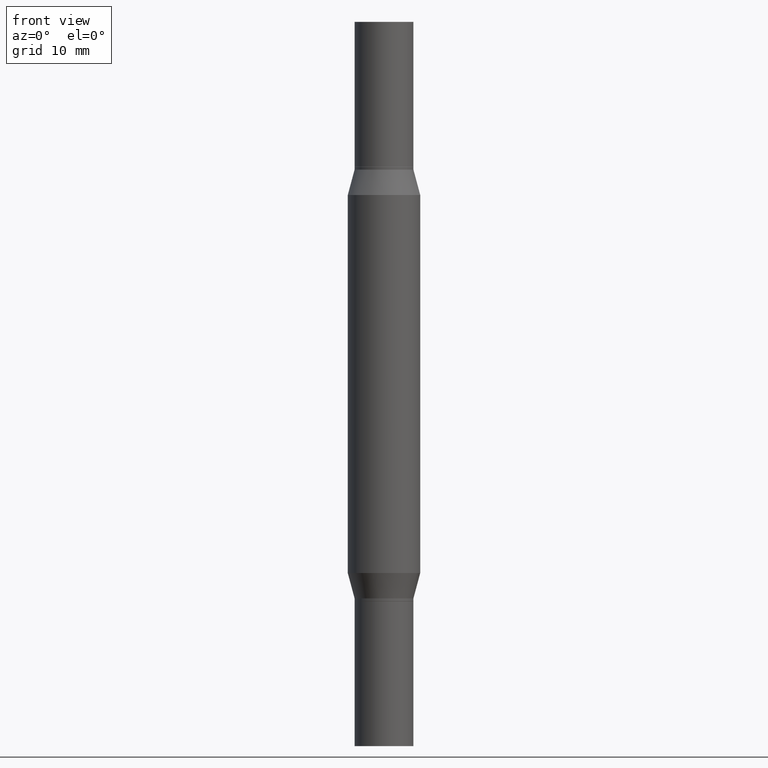
[diagram: clean part render]
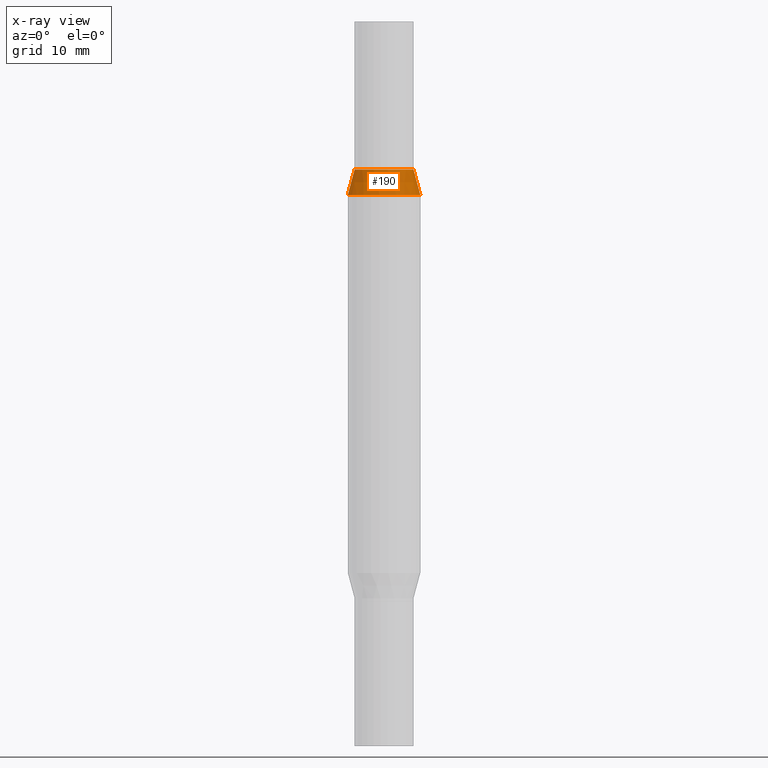
[diagram: x-ray — body ghosted, one internal face saturated and labeled with its STEP entity id]
A machine part, front view, then the same camera in x-ray: the body is ghosted and one INTERNAL B-rep face — a face not visible from any outside direction — is saturated and labeled: STEP entity #190.
In plain terms, the highlighted conical surface has half-angle 15 deg.
Its self-contained STEP definition (entity closure, byte-faithful):
#4 = CARTESIAN_POINT ( 'NONE',  ( -0.1015499999999997377, -1.067146257407934882E-15, -0.5099999999999994538 ) ) ;
#16 = CARTESIAN_POINT ( 'NONE',  ( 0.1250000000000000000, -2.958877117868543782E-15, -0.5975165914374901410 ) ) ;
#41 = AXIS2_PLACEMENT_3D ( 'NONE', #556, #442, #136 ) ;
#47 = DIRECTION ( 'NONE',  ( 1.000000000000000000, -6.982962677686266711E-15, 0.000000000000000000 ) ) ;
#48 = ORIENTED_EDGE ( 'NONE', *, *, #231, .T. ) ;
#92 = DIRECTION ( 'NONE',  ( 0.2588190451025219607, -5.180148453816008779E-15, -0.9659258262890678681 ) ) ;
#93 = ORIENTED_EDGE ( 'NONE', *, *, #787, .F. ) ;
#136 = DIRECTION ( 'NONE',  ( 1.000000000000000000, -6.982962677686268288E-15, 0.000000000000000000 ) ) ;
#150 = ORIENTED_EDGE ( 'NONE', *, *, #707, .T. ) ;
#159 = CARTESIAN_POINT ( 'NONE',  ( 0.1015499999999997377, -2.489535763201737721E-15, -0.5099999999999994538 ) ) ;
#173 = ORIENTED_EDGE ( 'NONE', *, *, #524, .F. ) ;
#181 = CIRCLE ( 'NONE', #839, 0.1250000000000000000 ) ;
#190 = ADVANCED_FACE ( 'NONE', ( #573 ), #456, .T. ) ;
#192 = VERTEX_POINT ( 'NONE', #578 ) ;
#211 = DIRECTION ( 'NONE',  ( 1.000000000000000000, -6.982962677686268288E-15, 0.000000000000000000 ) ) ;
#212 = AXIS2_PLACEMENT_3D ( 'NONE', #438, #653, #211 ) ;
#231 = EDGE_CURVE ( 'NONE', #472, #533, #367, .T. ) ;
#367 = LINE ( 'NONE', #895, #794 ) ;
#372 = EDGE_LOOP ( 'NONE', ( #93, #48, #150, #173 ) ) ;
#407 = DIRECTION ( 'NONE',  ( 2.445468806185136597E-29, 3.491805094961124077E-15, 1.000000000000000000 ) ) ;
#417 = CARTESIAN_POINT ( 'NONE',  ( 4.652463829924389037E-29, -2.086006783157758077E-15, -0.5975165914374901410 ) ) ;
#438 = CARTESIAN_POINT ( 'NONE',  ( 4.866482924308422209E-29, -1.780415903282698911E-15, -0.5099999999999994538 ) ) ;
#442 = DIRECTION ( 'NONE',  ( -2.445468806185136597E-29, -3.491805094961124077E-15, -1.000000000000000000 ) ) ;
#456 = CONICAL_SURFACE ( 'NONE', #41, 0.1015499999999997377, 0.2617993877991507401 ) ;
#472 = VERTEX_POINT ( 'NONE', #4 ) ;
#524 = EDGE_CURVE ( 'NONE', #192, #539, #910, .T. ) ;
#533 = VERTEX_POINT ( 'NONE', #547 ) ;
#539 = VERTEX_POINT ( 'NONE', #16 ) ;
#547 = CARTESIAN_POINT ( 'NONE',  ( -0.1250000000000000000, -1.228444533436318603E-15, -0.5975165914374901410 ) ) ;
#556 = CARTESIAN_POINT ( 'NONE',  ( 4.866482924308422209E-29, -1.780415903282698911E-15, -0.5099999999999994538 ) ) ;
#573 = FACE_OUTER_BOUND ( 'NONE', #372, .T. ) ;
#578 = CARTESIAN_POINT ( 'NONE',  ( 0.1015499999999997377, -2.489535763201737721E-15, -0.5099999999999994538 ) ) ;
#653 = DIRECTION ( 'NONE',  ( 2.445468806185136597E-29, 3.491805094961124077E-15, 1.000000000000000000 ) ) ;
#707 = EDGE_CURVE ( 'NONE', #533, #539, #181, .T. ) ;
#739 = DIRECTION ( 'NONE',  ( -0.2588190451025219607, -1.597197180879709001E-15, -0.9659258262890678681 ) ) ;
#750 = VECTOR ( 'NONE', #92, 39.37007874015748854 ) ;
#787 = EDGE_CURVE ( 'NONE', #472, #192, #851, .T. ) ;
#794 = VECTOR ( 'NONE', #739, 39.37007874015748854 ) ;
#839 = AXIS2_PLACEMENT_3D ( 'NONE', #417, #407, #47 ) ;
#851 = CIRCLE ( 'NONE', #212, 0.1015499999999997377 ) ;
#895 = CARTESIAN_POINT ( 'NONE',  ( -0.1015499999999997377, -1.083732331609001856E-15, -0.5099999999999994538 ) ) ;
#910 = LINE ( 'NONE', #159, #750 ) ;